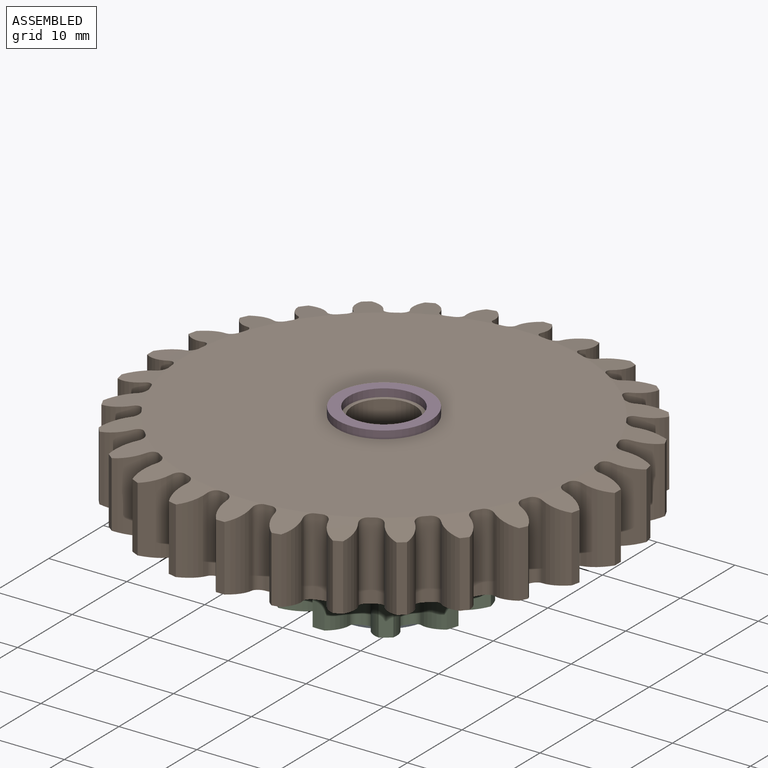
[diagram: assembled view]
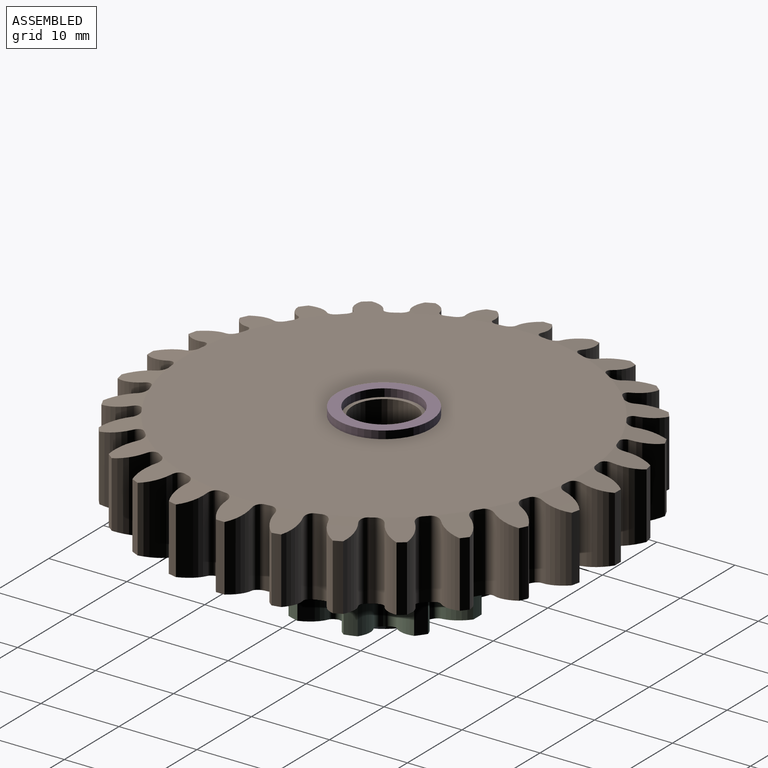
[diagram: assembled view, second angle]
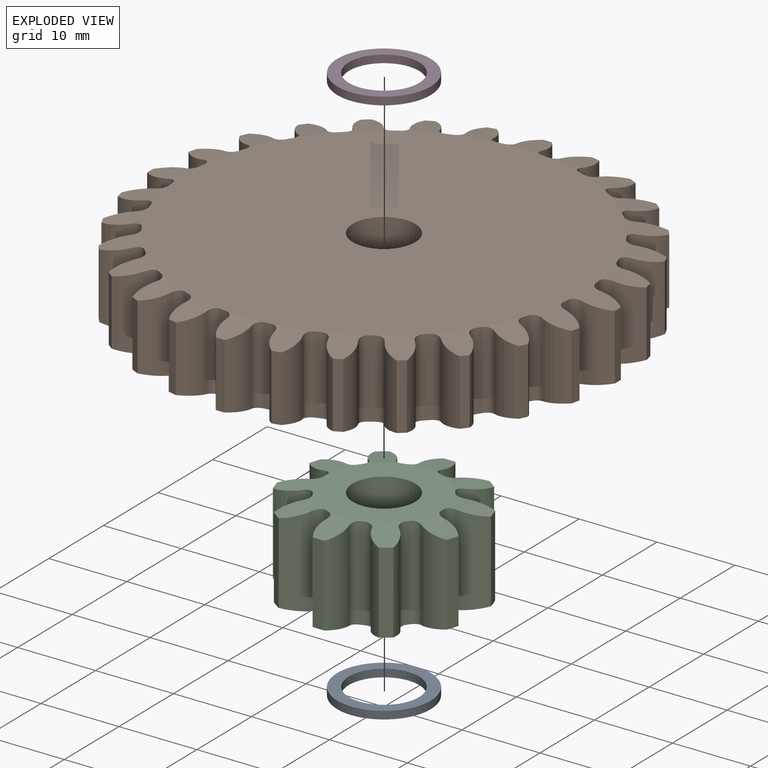
[diagram: exploded view]
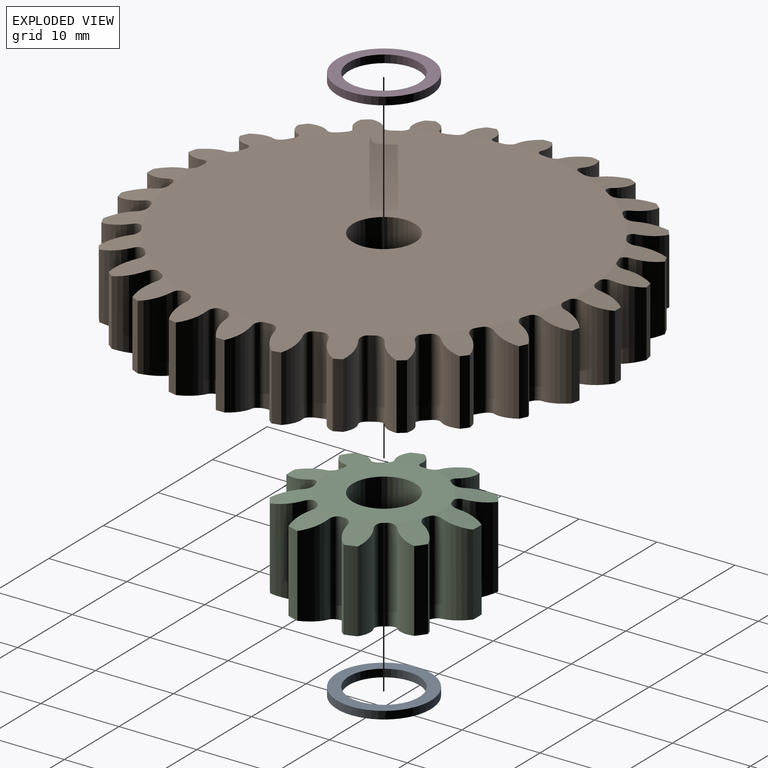
[diagram: exploded view, second angle]
ASSEMBLY  parts=4 mates=3
PART A: 4 faces, bbox 12x1x12 mm
  f0: cylinder r=4.5mm len=9mm, axis (0,1,0), area 28.3mm2, adj f2,f3
  f1: cylinder r=6mm len=12mm, axis (0,1,0), area 37.7mm2, adj f2,f3
  f2: plane 12x12mm, normal (0,-1,0), area 49.5mm2, adj f0,f1
  f3: plane 12x12mm, normal (0,1,0), area 49.5mm2, adj f0,f1
PART B: 227 faces, bbox 60x10x60 mm
  f0: plane 51x51mm, normal (0,-1,0), area 1992.6mm2, adj f2,f3,f4,f5,f6,f7,f8,f9
  f1: plane 51x51mm, normal (0,1,0), area 1992.6mm2, adj f2,f3,f4,f5,f6,f7,f8,f9
  f2: cylinder r=25.5mm len=10mm, axis (0,1,0), area 7.4mm2, adj f0,f1,f33,f169
  f3: cylinder r=25.5mm len=10mm, axis (0,1,0), area 7.4mm2, adj f0,f1,f164,f168
  f4: cylinder r=25.5mm len=10mm, axis (0,1,0), area 7.4mm2, adj f0,f1,f159,f163
  f5: cylinder r=25.5mm len=10mm, axis (0,1,0), area 7.4mm2, adj f0,f1,f154,f158
  f6: cylinder r=25.5mm len=10mm, axis (0,1,0), area 7.4mm2, adj f0,f1,f149,f153
  f7: cylinder r=25.5mm len=10mm, axis (0,1,0), area 7.4mm2, adj f0,f1,f144,f148
  f8: cylinder r=25.5mm len=10mm, axis (0,1,0), area 7.4mm2, adj f0,f1,f139,f143
  f9: cylinder r=25.5mm len=10mm, axis (0,1,0), area 7.4mm2, adj f0,f1,f134,f138
  f10: cylinder r=25.5mm len=10mm, axis (0,1,0), area 7.4mm2, adj f0,f1,f129,f133
  f11: cylinder r=25.5mm len=10mm, axis (0,1,0), area 7.4mm2, adj f0,f1,f124,f128
  f12: cylinder r=25.5mm len=10mm, axis (0,1,0), area 7.4mm2, adj f0,f1,f119,f123
  f13: cylinder r=25.5mm len=10mm, axis (0,1,0), area 7.4mm2, adj f0,f1,f114,f118
  f14: cylinder r=25.5mm len=10mm, axis (0,1,0), area 7.4mm2, adj f0,f1,f109,f113
  f15: cylinder r=25.5mm len=10mm, axis (0,1,0), area 7.4mm2, adj f0,f1,f104,f108
  f16: cylinder r=25.5mm len=10mm, axis (0,1,0), area 7.4mm2, adj f0,f1,f99,f103
  f17: cylinder r=25.5mm len=10mm, axis (0,1,0), area 7.4mm2, adj f0,f1,f94,f98
  f18: cylinder r=25.5mm len=10mm, axis (0,1,0), area 7.4mm2, adj f0,f1,f89,f93
  f19: cylinder r=25.5mm len=10mm, axis (0,1,0), area 7.4mm2, adj f0,f1,f84,f88
  f20: cylinder r=25.5mm len=10mm, axis (0,1,0), area 7.4mm2, adj f0,f1,f79,f83
  f21: cylinder r=25.5mm len=10mm, axis (0,1,0), area 7.4mm2, adj f0,f1,f74,f78
  f22: cylinder r=25.5mm len=10mm, axis (0,1,0), area 7.4mm2, adj f0,f1,f69,f73
  f23: cylinder r=25.5mm len=10mm, axis (0,1,0), area 7.4mm2, adj f0,f1,f64,f68
  f24: cylinder r=25.5mm len=10mm, axis (0,1,0), area 7.4mm2, adj f0,f1,f59,f63
  f25: cylinder r=25.5mm len=10mm, axis (0,1,0), area 7.4mm2, adj f0,f1,f54,f58
  f26: cylinder r=25.5mm len=10mm, axis (0,1,0), area 7.4mm2, adj f0,f1,f49,f53
  f27: cylinder r=25.5mm len=10mm, axis (0,1,0), area 7.4mm2, adj f0,f1,f44,f48
  f28: cylinder r=25.5mm len=10mm, axis (0,1,0), area 7.4mm2, adj f0,f1,f39,f43
  f29: cylinder r=25.5mm len=10mm, axis (0,1,0), area 7.4mm2, adj f0,f1,f34,f38
  f30: cylinder r=4.52mm len=9.63mm, axis (0,1,0), area 33.9mm2, adj f31,f34,f197,f225
  f31: cylinder r=30mm len=8.41mm, axis (0,1,0), area 9.3mm2, adj f30,f32,f197,f225
  f32: cylinder r=4.52mm len=9.63mm, axis (0,1,0), area 33.9mm2, adj f31,f33,f197,f225
  f33: cylinder r=1mm len=10mm, axis (0,1,0), area 15.8mm2, adj f2,f32,f197,f225
  f34: cylinder r=1mm len=10mm, axis (0,1,0), area 15.8mm2, adj f29,f30,f197,f225
  f35: cylinder r=4.52mm len=9.63mm, axis (0,1,0), area 33.9mm2, adj f36,f39,f196,f224
  f36: cylinder r=30mm len=8.41mm, axis (0,1,0), area 9.3mm2, adj f35,f37,f196,f224
  f37: cylinder r=4.52mm len=9.63mm, axis (0,1,0), area 33.9mm2, adj f36,f38,f196,f224
  f38: cylinder r=1mm len=10mm, axis (0,1,0), area 15.8mm2, adj f29,f37,f196,f224
  f39: cylinder r=1mm len=10mm, axis (0,1,0), area 15.8mm2, adj f28,f35,f196,f224
  f40: cylinder r=4.52mm len=9.63mm, axis (0,1,0), area 33.9mm2, adj f41,f44,f195,f223
  f41: cylinder r=30mm len=8.41mm, axis (0,1,0), area 9.3mm2, adj f40,f42,f195,f223
  f42: cylinder r=4.52mm len=9.63mm, axis (0,1,0), area 33.9mm2, adj f41,f43,f195,f223
  f43: cylinder r=1mm len=10mm, axis (0,1,0), area 15.8mm2, adj f28,f42,f195,f223
  f44: cylinder r=1mm len=10mm, axis (0,1,0), area 15.8mm2, adj f27,f40,f195,f223
  f45: cylinder r=4.52mm len=9.63mm, axis (0,1,0), area 33.9mm2, adj f46,f49,f194,f222
  f46: cylinder r=30mm len=8.41mm, axis (0,1,0), area 9.3mm2, adj f45,f47,f194,f222
  f47: cylinder r=4.52mm len=9.63mm, axis (0,1,0), area 33.9mm2, adj f46,f48,f194,f222
  f48: cylinder r=1mm len=10mm, axis (0,1,0), area 15.8mm2, adj f27,f47,f194,f222
  f49: cylinder r=1mm len=10mm, axis (0,1,0), area 15.8mm2, adj f26,f45,f194,f222
  f50: cylinder r=4.52mm len=9.63mm, axis (0,1,0), area 33.9mm2, adj f51,f54,f193,f221
  f51: cylinder r=30mm len=8.41mm, axis (0,1,0), area 9.3mm2, adj f50,f52,f193,f221
  f52: cylinder r=4.52mm len=9.63mm, axis (0,1,0), area 33.9mm2, adj f51,f53,f193,f221
  f53: cylinder r=1mm len=10mm, axis (0,1,0), area 15.8mm2, adj f26,f52,f193,f221
  f54: cylinder r=1mm len=10mm, axis (0,1,0), area 15.8mm2, adj f25,f50,f193,f221
  f55: cylinder r=4.52mm len=9.63mm, axis (0,1,0), area 33.9mm2, adj f56,f59,f192,f220
  f56: cylinder r=30mm len=8.41mm, axis (0,1,0), area 9.3mm2, adj f55,f57,f192,f220
  f57: cylinder r=4.52mm len=9.63mm, axis (0,1,0), area 33.9mm2, adj f56,f58,f192,f220
  f58: cylinder r=1mm len=10mm, axis (0,1,0), area 15.8mm2, adj f25,f57,f192,f220
  f59: cylinder r=1mm len=10mm, axis (0,1,0), area 15.8mm2, adj f24,f55,f192,f220
  f60: cylinder r=4.52mm len=9.63mm, axis (0,1,0), area 33.9mm2, adj f61,f64,f191,f219
  f61: cylinder r=30mm len=8.41mm, axis (0,1,0), area 9.3mm2, adj f60,f62,f191,f219
  f62: cylinder r=4.52mm len=9.63mm, axis (0,1,0), area 33.9mm2, adj f61,f63,f191,f219
  f63: cylinder r=1mm len=10mm, axis (0,1,0), area 15.8mm2, adj f24,f62,f191,f219
  f64: cylinder r=1mm len=10mm, axis (0,1,0), area 15.8mm2, adj f23,f60,f191,f219
  f65: cylinder r=4.52mm len=9.63mm, axis (0,1,0), area 33.9mm2, adj f66,f69,f190,f218
  f66: cylinder r=30mm len=8.41mm, axis (0,1,0), area 9.3mm2, adj f65,f67,f190,f218
  f67: cylinder r=4.52mm len=9.63mm, axis (0,1,0), area 33.9mm2, adj f66,f68,f190,f218
  f68: cylinder r=1mm len=10mm, axis (0,1,0), area 15.8mm2, adj f23,f67,f190,f218
  f69: cylinder r=1mm len=10mm, axis (0,1,0), area 15.8mm2, adj f22,f65,f190,f218
  f70: cylinder r=4.52mm len=9.63mm, axis (0,1,0), area 33.9mm2, adj f71,f74,f189,f217
  f71: cylinder r=30mm len=8.41mm, axis (0,1,0), area 9.3mm2, adj f70,f72,f189,f217
  f72: cylinder r=4.52mm len=9.63mm, axis (0,1,0), area 33.9mm2, adj f71,f73,f189,f217
  f73: cylinder r=1mm len=10mm, axis (0,1,0), area 15.8mm2, adj f22,f72,f189,f217
  f74: cylinder r=1mm len=10mm, axis (0,1,0), area 15.8mm2, adj f21,f70,f189,f217
  f75: cylinder r=4.52mm len=9.63mm, axis (0,1,0), area 33.9mm2, adj f76,f79,f188,f216
  f76: cylinder r=30mm len=8.41mm, axis (0,1,0), area 9.3mm2, adj f75,f77,f188,f216
  f77: cylinder r=4.52mm len=9.63mm, axis (0,1,0), area 33.9mm2, adj f76,f78,f188,f216
  f78: cylinder r=1mm len=10mm, axis (0,1,0), area 15.8mm2, adj f21,f77,f188,f216
  f79: cylinder r=1mm len=10mm, axis (0,1,0), area 15.8mm2, adj f20,f75,f188,f216
  f80: cylinder r=4.52mm len=9.63mm, axis (0,1,0), area 33.9mm2, adj f81,f84,f187,f215
  f81: cylinder r=30mm len=8.41mm, axis (0,1,0), area 9.3mm2, adj f80,f82,f187,f215
  f82: cylinder r=4.52mm len=9.63mm, axis (0,1,0), area 33.9mm2, adj f81,f83,f187,f215
  f83: cylinder r=1mm len=10mm, axis (0,1,0), area 15.8mm2, adj f20,f82,f187,f215
  f84: cylinder r=1mm len=10mm, axis (0,1,0), area 15.8mm2, adj f19,f80,f187,f215
  f85: cylinder r=4.52mm len=9.63mm, axis (0,1,0), area 33.9mm2, adj f86,f89,f186,f214
  f86: cylinder r=30mm len=8.41mm, axis (0,1,0), area 9.3mm2, adj f85,f87,f186,f214
  f87: cylinder r=4.52mm len=9.63mm, axis (0,1,0), area 33.9mm2, adj f86,f88,f186,f214
  f88: cylinder r=1mm len=10mm, axis (0,1,0), area 15.8mm2, adj f19,f87,f186,f214
  f89: cylinder r=1mm len=10mm, axis (0,1,0), area 15.8mm2, adj f18,f85,f186,f214
  f90: cylinder r=4.52mm len=9.63mm, axis (0,1,0), area 33.9mm2, adj f91,f94,f185,f213
  f91: cylinder r=30mm len=8.41mm, axis (0,1,0), area 9.3mm2, adj f90,f92,f185,f213
  f92: cylinder r=4.52mm len=9.63mm, axis (0,1,0), area 33.9mm2, adj f91,f93,f185,f213
  f93: cylinder r=1mm len=10mm, axis (0,1,0), area 15.8mm2, adj f18,f92,f185,f213
  f94: cylinder r=1mm len=10mm, axis (0,1,0), area 15.8mm2, adj f17,f90,f185,f213
  f95: cylinder r=4.52mm len=9.63mm, axis (0,1,0), area 33.9mm2, adj f96,f99,f184,f212
  f96: cylinder r=30mm len=8.41mm, axis (0,1,0), area 9.3mm2, adj f95,f97,f184,f212
  f97: cylinder r=4.52mm len=9.63mm, axis (0,1,0), area 33.9mm2, adj f96,f98,f184,f212
  f98: cylinder r=1mm len=10mm, axis (0,1,0), area 15.8mm2, adj f17,f97,f184,f212
  f99: cylinder r=1mm len=10mm, axis (0,1,0), area 15.8mm2, adj f16,f95,f184,f212
  f100: cylinder r=4.52mm len=9.63mm, axis (0,1,0), area 33.9mm2, adj f101,f104,f183,f211
  f101: cylinder r=30mm len=8.41mm, axis (0,1,0), area 9.3mm2, adj f100,f102,f183,f211
  f102: cylinder r=4.52mm len=9.63mm, axis (0,1,0), area 33.9mm2, adj f101,f103,f183,f211
  f103: cylinder r=1mm len=10mm, axis (0,1,0), area 15.8mm2, adj f16,f102,f183,f211
  f104: cylinder r=1mm len=10mm, axis (0,1,0), area 15.8mm2, adj f15,f100,f183,f211
  f105: cylinder r=4.52mm len=9.63mm, axis (0,1,0), area 33.9mm2, adj f106,f109,f182,f210
  f106: cylinder r=30mm len=8.41mm, axis (0,1,0), area 9.3mm2, adj f105,f107,f182,f210
  f107: cylinder r=4.52mm len=9.63mm, axis (0,1,0), area 33.9mm2, adj f106,f108,f182,f210
  f108: cylinder r=1mm len=10mm, axis (0,1,0), area 15.8mm2, adj f15,f107,f182,f210
  f109: cylinder r=1mm len=10mm, axis (0,1,0), area 15.8mm2, adj f14,f105,f182,f210
  f110: cylinder r=4.52mm len=9.63mm, axis (0,1,0), area 33.9mm2, adj f111,f114,f181,f209
  f111: cylinder r=30mm len=8.41mm, axis (0,1,0), area 9.3mm2, adj f110,f112,f181,f209
  f112: cylinder r=4.52mm len=9.63mm, axis (0,1,0), area 33.9mm2, adj f111,f113,f181,f209
  f113: cylinder r=1mm len=10mm, axis (0,1,0), area 15.8mm2, adj f14,f112,f181,f209
  f114: cylinder r=1mm len=10mm, axis (0,1,0), area 15.8mm2, adj f13,f110,f181,f209
  f115: cylinder r=4.52mm len=9.63mm, axis (0,1,0), area 33.9mm2, adj f116,f119,f180,f208
  f116: cylinder r=30mm len=8.41mm, axis (0,1,0), area 9.3mm2, adj f115,f117,f180,f208
  f117: cylinder r=4.52mm len=9.63mm, axis (0,1,0), area 33.9mm2, adj f116,f118,f180,f208
  f118: cylinder r=1mm len=10mm, axis (0,1,0), area 15.8mm2, adj f13,f117,f180,f208
  f119: cylinder r=1mm len=10mm, axis (0,1,0), area 15.8mm2, adj f12,f115,f180,f208
  f120: cylinder r=4.52mm len=9.63mm, axis (0,1,0), area 33.9mm2, adj f121,f124,f179,f207
  f121: cylinder r=30mm len=8.41mm, axis (0,1,0), area 9.3mm2, adj f120,f122,f179,f207
  f122: cylinder r=4.52mm len=9.63mm, axis (0,1,0), area 33.9mm2, adj f121,f123,f179,f207
  f123: cylinder r=1mm len=10mm, axis (0,1,0), area 15.8mm2, adj f12,f122,f179,f207
  f124: cylinder r=1mm len=10mm, axis (0,1,0), area 15.8mm2, adj f11,f120,f179,f207
  f125: cylinder r=4.52mm len=9.63mm, axis (0,1,0), area 33.9mm2, adj f126,f129,f178,f206
  f126: cylinder r=30mm len=8.41mm, axis (0,1,0), area 9.3mm2, adj f125,f127,f178,f206
  f127: cylinder r=4.52mm len=9.63mm, axis (0,1,0), area 33.9mm2, adj f126,f128,f178,f206
  f128: cylinder r=1mm len=10mm, axis (0,1,0), area 15.8mm2, adj f11,f127,f178,f206
  f129: cylinder r=1mm len=10mm, axis (0,1,0), area 15.8mm2, adj f10,f125,f178,f206
  f130: cylinder r=4.52mm len=9.63mm, axis (0,1,0), area 33.9mm2, adj f131,f134,f177,f205
  f131: cylinder r=30mm len=8.41mm, axis (0,1,0), area 9.3mm2, adj f130,f132,f177,f205
  f132: cylinder r=4.52mm len=9.63mm, axis (0,1,0), area 33.9mm2, adj f131,f133,f177,f205
  f133: cylinder r=1mm len=10mm, axis (0,1,0), area 15.8mm2, adj f10,f132,f177,f205
  f134: cylinder r=1mm len=10mm, axis (0,1,0), area 15.8mm2, adj f9,f130,f177,f205
  f135: cylinder r=4.52mm len=9.63mm, axis (0,1,0), area 33.9mm2, adj f136,f139,f176,f204
  f136: cylinder r=30mm len=8.41mm, axis (0,1,0), area 9.3mm2, adj f135,f137,f176,f204
  f137: cylinder r=4.52mm len=9.63mm, axis (0,1,0), area 33.9mm2, adj f136,f138,f176,f204
  f138: cylinder r=1mm len=10mm, axis (0,1,0), area 15.8mm2, adj f9,f137,f176,f204
  f139: cylinder r=1mm len=10mm, axis (0,1,0), area 15.8mm2, adj f8,f135,f176,f204
  f140: cylinder r=4.52mm len=9.63mm, axis (0,1,0), area 33.9mm2, adj f141,f144,f175,f203
  f141: cylinder r=30mm len=8.41mm, axis (0,1,0), area 9.3mm2, adj f140,f142,f175,f203
  f142: cylinder r=4.52mm len=9.63mm, axis (0,1,0), area 33.9mm2, adj f141,f143,f175,f203
  f143: cylinder r=1mm len=10mm, axis (0,1,0), area 15.8mm2, adj f8,f142,f175,f203
  f144: cylinder r=1mm len=10mm, axis (0,1,0), area 15.8mm2, adj f7,f140,f175,f203
  f145: cylinder r=4.52mm len=9.63mm, axis (0,1,0), area 33.9mm2, adj f146,f149,f174,f202
  f146: cylinder r=30mm len=8.41mm, axis (0,1,0), area 9.3mm2, adj f145,f147,f174,f202
  f147: cylinder r=4.52mm len=9.63mm, axis (0,1,0), area 33.9mm2, adj f146,f148,f174,f202
  f148: cylinder r=1mm len=10mm, axis (0,1,0), area 15.8mm2, adj f7,f147,f174,f202
  f149: cylinder r=1mm len=10mm, axis (0,1,0), area 15.8mm2, adj f6,f145,f174,f202
  f150: cylinder r=4.52mm len=9.63mm, axis (0,1,0), area 33.9mm2, adj f151,f154,f173,f201
  f151: cylinder r=30mm len=8.41mm, axis (0,1,0), area 9.3mm2, adj f150,f152,f173,f201
  f152: cylinder r=4.52mm len=9.63mm, axis (0,1,0), area 33.9mm2, adj f151,f153,f173,f201
  f153: cylinder r=1mm len=10mm, axis (0,1,0), area 15.8mm2, adj f6,f152,f173,f201
  f154: cylinder r=1mm len=10mm, axis (0,1,0), area 15.8mm2, adj f5,f150,f173,f201
  f155: cylinder r=4.52mm len=9.63mm, axis (0,1,0), area 33.9mm2, adj f156,f159,f172,f200
  f156: cylinder r=30mm len=8.41mm, axis (0,1,0), area 9.3mm2, adj f155,f157,f172,f200
  f157: cylinder r=4.52mm len=9.63mm, axis (0,1,0), area 33.9mm2, adj f156,f158,f172,f200
  f158: cylinder r=1mm len=10mm, axis (0,1,0), area 15.8mm2, adj f5,f157,f172,f200
  f159: cylinder r=1mm len=10mm, axis (0,1,0), area 15.8mm2, adj f4,f155,f172,f200
  f160: cylinder r=4.52mm len=9.63mm, axis (0,1,0), area 33.9mm2, adj f161,f164,f171,f199
  f161: cylinder r=30mm len=8.41mm, axis (0,1,0), area 9.3mm2, adj f160,f162,f171,f199
  f162: cylinder r=4.52mm len=9.63mm, axis (0,1,0), area 33.9mm2, adj f161,f163,f171,f199
  f163: cylinder r=1mm len=10mm, axis (0,1,0), area 15.8mm2, adj f4,f162,f171,f199
  f164: cylinder r=1mm len=10mm, axis (0,1,0), area 15.8mm2, adj f3,f160,f171,f199
  f165: cylinder r=4.52mm len=9.63mm, axis (0,1,0), area 33.9mm2, adj f166,f169,f170,f198
  f166: cylinder r=30mm len=8.41mm, axis (0,1,0), area 9.3mm2, adj f165,f167,f170,f198
  f167: cylinder r=4.52mm len=9.63mm, axis (0,1,0), area 33.9mm2, adj f166,f168,f170,f198
  f168: cylinder r=1mm len=10mm, axis (0,1,0), area 15.8mm2, adj f3,f167,f170,f198
  f169: cylinder r=1mm len=10mm, axis (0,1,0), area 15.8mm2, adj f2,f165,f170,f198
  f170: cone r=30.12mm half-angle=80deg, axis (0,-1,0), area 13.2mm2, adj f1,f165,f166,f167,f168,f169
  f171: cone r=30.12mm half-angle=80deg, axis (0,-1,0), area 13.2mm2, adj f1,f160,f161,f162,f163,f164
  f172: cone r=30.12mm half-angle=80deg, axis (0,-1,0), area 13.2mm2, adj f1,f155,f156,f157,f158,f159
  f173: cone r=30.12mm half-angle=80deg, axis (0,-1,0), area 13.2mm2, adj f1,f150,f151,f152,f153,f154
  f174: cone r=30.12mm half-angle=80deg, axis (0,-1,0), area 13.2mm2, adj f1,f145,f146,f147,f148,f149
  f175: cone r=30.12mm half-angle=80deg, axis (0,-1,0), area 13.2mm2, adj f1,f140,f141,f142,f143,f144
  f176: cone r=30.12mm half-angle=80deg, axis (0,-1,0), area 13.2mm2, adj f1,f135,f136,f137,f138,f139
  f177: cone r=30.12mm half-angle=80deg, axis (0,-1,0), area 13.2mm2, adj f1,f130,f131,f132,f133,f134
  f178: cone r=30.12mm half-angle=80deg, axis (0,-1,0), area 13.2mm2, adj f1,f125,f126,f127,f128,f129
  f179: cone r=30.12mm half-angle=80deg, axis (0,-1,0), area 13.2mm2, adj f1,f120,f121,f122,f123,f124
  f180: cone r=30.12mm half-angle=80deg, axis (0,-1,0), area 13.2mm2, adj f1,f115,f116,f117,f118,f119
  f181: cone r=30.12mm half-angle=80deg, axis (0,-1,0), area 13.2mm2, adj f1,f110,f111,f112,f113,f114
  f182: cone r=30.12mm half-angle=80deg, axis (0,-1,0), area 13.2mm2, adj f1,f105,f106,f107,f108,f109
  f183: cone r=30.12mm half-angle=80deg, axis (0,-1,0), area 13.2mm2, adj f1,f100,f101,f102,f103,f104
  f184: cone r=30.12mm half-angle=80deg, axis (0,-1,0), area 13.2mm2, adj f1,f95,f96,f97,f98,f99
  f185: cone r=30.12mm half-angle=80deg, axis (0,-1,0), area 13.2mm2, adj f1,f90,f91,f92,f93,f94
  f186: cone r=30.12mm half-angle=80deg, axis (0,-1,0), area 13.2mm2, adj f1,f85,f86,f87,f88,f89
  f187: cone r=30.12mm half-angle=80deg, axis (0,-1,0), area 13.2mm2, adj f1,f80,f81,f82,f83,f84
  f188: cone r=30.12mm half-angle=80deg, axis (0,-1,0), area 13.2mm2, adj f1,f75,f76,f77,f78,f79
  f189: cone r=30.12mm half-angle=80deg, axis (0,-1,0), area 13.2mm2, adj f1,f70,f71,f72,f73,f74
  f190: cone r=30.12mm half-angle=80deg, axis (0,-1,0), area 13.2mm2, adj f1,f65,f66,f67,f68,f69
  f191: cone r=30.12mm half-angle=80deg, axis (0,-1,0), area 13.2mm2, adj f1,f60,f61,f62,f63,f64
  f192: cone r=30.12mm half-angle=80deg, axis (0,-1,0), area 13.2mm2, adj f1,f55,f56,f57,f58,f59
  f193: cone r=30.12mm half-angle=80deg, axis (0,-1,0), area 13.2mm2, adj f1,f50,f51,f52,f53,f54
  f194: cone r=30.12mm half-angle=80deg, axis (0,-1,0), area 13.2mm2, adj f1,f45,f46,f47,f48,f49
  f195: cone r=30.12mm half-angle=80deg, axis (0,-1,0), area 13.2mm2, adj f1,f40,f41,f42,f43,f44
  f196: cone r=30.12mm half-angle=80deg, axis (0,-1,0), area 13.2mm2, adj f1,f35,f36,f37,f38,f39
  f197: cone r=30.12mm half-angle=80deg, axis (0,-1,0), area 13.2mm2, adj f1,f30,f31,f32,f33,f34
  f198: cone r=30.12mm half-angle=80deg, axis (0,1,0), area 13.2mm2, adj f0,f165,f166,f167,f168,f169
  f199: cone r=30.12mm half-angle=80deg, axis (0,1,0), area 13.2mm2, adj f0,f160,f161,f162,f163,f164
  f200: cone r=30.12mm half-angle=80deg, axis (0,1,0), area 13.2mm2, adj f0,f155,f156,f157,f158,f159
  f201: cone r=30.12mm half-angle=80deg, axis (0,1,0), area 13.2mm2, adj f0,f150,f151,f152,f153,f154
  f202: cone r=30.12mm half-angle=80deg, axis (0,1,0), area 13.2mm2, adj f0,f145,f146,f147,f148,f149
  f203: cone r=30.12mm half-angle=80deg, axis (0,1,0), area 13.2mm2, adj f0,f140,f141,f142,f143,f144
  f204: cone r=30.12mm half-angle=80deg, axis (0,1,0), area 13.2mm2, adj f0,f135,f136,f137,f138,f139
  f205: cone r=30.12mm half-angle=80deg, axis (0,1,0), area 13.2mm2, adj f0,f130,f131,f132,f133,f134
  f206: cone r=30.12mm half-angle=80deg, axis (0,1,0), area 13.2mm2, adj f0,f125,f126,f127,f128,f129
  f207: cone r=30.12mm half-angle=80deg, axis (0,1,0), area 13.2mm2, adj f0,f120,f121,f122,f123,f124
  f208: cone r=30.12mm half-angle=80deg, axis (0,1,0), area 13.2mm2, adj f0,f115,f116,f117,f118,f119
  f209: cone r=30.12mm half-angle=80deg, axis (0,1,0), area 13.2mm2, adj f0,f110,f111,f112,f113,f114
  f210: cone r=30.12mm half-angle=80deg, axis (0,1,0), area 13.2mm2, adj f0,f105,f106,f107,f108,f109
  f211: cone r=30.12mm half-angle=80deg, axis (0,1,0), area 13.2mm2, adj f0,f100,f101,f102,f103,f104
  f212: cone r=30.12mm half-angle=80deg, axis (0,1,0), area 13.2mm2, adj f0,f95,f96,f97,f98,f99
  f213: cone r=30.12mm half-angle=80deg, axis (0,1,0), area 13.2mm2, adj f0,f90,f91,f92,f93,f94
  f214: cone r=30.12mm half-angle=80deg, axis (0,1,0), area 13.2mm2, adj f0,f85,f86,f87,f88,f89
  f215: cone r=30.12mm half-angle=80deg, axis (0,1,0), area 13.2mm2, adj f0,f80,f81,f82,f83,f84
  f216: cone r=30.12mm half-angle=80deg, axis (0,1,0), area 13.2mm2, adj f0,f75,f76,f77,f78,f79
  f217: cone r=30.12mm half-angle=80deg, axis (0,1,0), area 13.2mm2, adj f0,f70,f71,f72,f73,f74
  f218: cone r=30.12mm half-angle=80deg, axis (0,1,0), area 13.2mm2, adj f0,f65,f66,f67,f68,f69
  f219: cone r=30.12mm half-angle=80deg, axis (0,1,0), area 13.2mm2, adj f0,f60,f61,f62,f63,f64
  f220: cone r=30.12mm half-angle=80deg, axis (0,1,0), area 13.2mm2, adj f0,f55,f56,f57,f58,f59
  f221: cone r=30.12mm half-angle=80deg, axis (0,1,0), area 13.2mm2, adj f0,f50,f51,f52,f53,f54
  f222: cone r=30.12mm half-angle=80deg, axis (0,1,0), area 13.2mm2, adj f0,f45,f46,f47,f48,f49
  f223: cone r=30.12mm half-angle=80deg, axis (0,1,0), area 13.2mm2, adj f0,f40,f41,f42,f43,f44
  f224: cone r=30.12mm half-angle=80deg, axis (0,1,0), area 13.2mm2, adj f0,f35,f36,f37,f38,f39
  f225: cone r=30.12mm half-angle=80deg, axis (0,1,0), area 13.2mm2, adj f0,f30,f31,f32,f33,f34
  f226: cylinder r=4mm len=10mm, axis (0,1,0), area 251.3mm2, adj f0,f1
PART C: 83 faces, bbox 24x12x24 mm
  f0: plane 15x15mm, normal (0,-1,0), area 126.4mm2, adj f2,f3,f4,f5,f6,f7,f8,f9
  f1: plane 15x15mm, normal (0,1,0), area 126.4mm2, adj f2,f3,f4,f5,f6,f7,f8,f9
  f2: cylinder r=7.5mm len=12mm, axis (0,1,0), area 4.9mm2, adj f0,f1,f15,f61
  f3: cylinder r=7.5mm len=12mm, axis (0,1,0), area 4.9mm2, adj f0,f1,f56,f60
  f4: cylinder r=7.5mm len=12mm, axis (0,1,0), area 4.9mm2, adj f0,f1,f51,f55
  f5: cylinder r=7.5mm len=12mm, axis (0,1,0), area 4.9mm2, adj f0,f1,f46,f50
  f6: cylinder r=7.5mm len=12mm, axis (0,1,0), area 4.9mm2, adj f0,f1,f41,f45
  f7: cylinder r=7.5mm len=12mm, axis (0,1,0), area 4.9mm2, adj f0,f1,f36,f40
  f8: cylinder r=7.5mm len=12mm, axis (0,1,0), area 4.9mm2, adj f0,f1,f31,f35
  f9: cylinder r=7.5mm len=12mm, axis (0,1,0), area 4.9mm2, adj f0,f1,f26,f30
  f10: cylinder r=7.5mm len=12mm, axis (0,1,0), area 4.9mm2, adj f0,f1,f21,f25
  f11: cylinder r=7.5mm len=12mm, axis (0,1,0), area 4.9mm2, adj f0,f1,f16,f20
  f12: cylinder r=4.45mm len=11.64mm, axis (0,1,0), area 41.4mm2, adj f13,f16,f71,f81
  f13: cylinder r=12mm len=10.41mm, axis (0,1,0), area 16.1mm2, adj f12,f14,f71,f81
  f14: cylinder r=4.45mm len=11.64mm, axis (0,1,0), area 41.4mm2, adj f13,f15,f71,f81
  f15: cylinder r=1mm len=12mm, axis (0,1,0), area 18mm2, adj f2,f14,f71,f81
  f16: cylinder r=1mm len=12mm, axis (0,1,0), area 18mm2, adj f11,f12,f71,f81
  f17: cylinder r=4.45mm len=11.64mm, axis (0,1,0), area 41.4mm2, adj f18,f21,f70,f80
  f18: cylinder r=12mm len=10.41mm, axis (0,1,0), area 16.1mm2, adj f17,f19,f70,f80
  f19: cylinder r=4.45mm len=11.64mm, axis (0,1,0), area 41.4mm2, adj f18,f20,f70,f80
  f20: cylinder r=1mm len=12mm, axis (0,1,0), area 18mm2, adj f11,f19,f70,f80
  f21: cylinder r=1mm len=12mm, axis (0,1,0), area 18mm2, adj f10,f17,f70,f80
  f22: cylinder r=4.45mm len=11.64mm, axis (0,1,0), area 41.4mm2, adj f23,f26,f69,f79
  f23: cylinder r=12mm len=10.41mm, axis (0,1,0), area 16.1mm2, adj f22,f24,f69,f79
  f24: cylinder r=4.45mm len=11.64mm, axis (0,1,0), area 41.4mm2, adj f23,f25,f69,f79
  f25: cylinder r=1mm len=12mm, axis (0,1,0), area 18mm2, adj f10,f24,f69,f79
  f26: cylinder r=1mm len=12mm, axis (0,1,0), area 18mm2, adj f9,f22,f69,f79
  f27: cylinder r=4.45mm len=11.64mm, axis (0,1,0), area 41.4mm2, adj f28,f31,f68,f78
  f28: cylinder r=12mm len=10.41mm, axis (0,1,0), area 16.1mm2, adj f27,f29,f68,f78
  f29: cylinder r=4.45mm len=11.64mm, axis (0,1,0), area 41.4mm2, adj f28,f30,f68,f78
  f30: cylinder r=1mm len=12mm, axis (0,1,0), area 18mm2, adj f9,f29,f68,f78
  f31: cylinder r=1mm len=12mm, axis (0,1,0), area 18mm2, adj f8,f27,f68,f78
  f32: cylinder r=4.45mm len=11.64mm, axis (0,1,0), area 41.4mm2, adj f33,f36,f67,f77
  f33: cylinder r=12mm len=10.41mm, axis (0,1,0), area 16.1mm2, adj f32,f34,f67,f77
  f34: cylinder r=4.45mm len=11.64mm, axis (0,1,0), area 41.4mm2, adj f33,f35,f67,f77
  f35: cylinder r=1mm len=12mm, axis (0,1,0), area 18mm2, adj f8,f34,f67,f77
  f36: cylinder r=1mm len=12mm, axis (0,1,0), area 18mm2, adj f7,f32,f67,f77
  f37: cylinder r=4.45mm len=11.64mm, axis (0,1,0), area 41.4mm2, adj f38,f41,f66,f76
  f38: cylinder r=12mm len=10.41mm, axis (0,1,0), area 16.1mm2, adj f37,f39,f66,f76
  f39: cylinder r=4.45mm len=11.64mm, axis (0,1,0), area 41.4mm2, adj f38,f40,f66,f76
  f40: cylinder r=1mm len=12mm, axis (0,1,0), area 18mm2, adj f7,f39,f66,f76
  f41: cylinder r=1mm len=12mm, axis (0,1,0), area 18mm2, adj f6,f37,f66,f76
  f42: cylinder r=4.45mm len=11.64mm, axis (0,1,0), area 41.4mm2, adj f43,f46,f65,f75
  f43: cylinder r=12mm len=10.41mm, axis (0,1,0), area 16.1mm2, adj f42,f44,f65,f75
  f44: cylinder r=4.45mm len=11.64mm, axis (0,1,0), area 41.4mm2, adj f43,f45,f65,f75
  f45: cylinder r=1mm len=12mm, axis (0,1,0), area 18mm2, adj f6,f44,f65,f75
  f46: cylinder r=1mm len=12mm, axis (0,1,0), area 18mm2, adj f5,f42,f65,f75
  f47: cylinder r=4.45mm len=11.64mm, axis (0,1,0), area 41.4mm2, adj f48,f51,f64,f74
  f48: cylinder r=12mm len=10.41mm, axis (0,1,0), area 16.1mm2, adj f47,f49,f64,f74
  f49: cylinder r=4.45mm len=11.64mm, axis (0,1,0), area 41.4mm2, adj f48,f50,f64,f74
  f50: cylinder r=1mm len=12mm, axis (0,1,0), area 18mm2, adj f5,f49,f64,f74
  f51: cylinder r=1mm len=12mm, axis (0,1,0), area 18mm2, adj f4,f47,f64,f74
  f52: cylinder r=4.45mm len=11.64mm, axis (0,1,0), area 41.4mm2, adj f53,f56,f63,f73
  f53: cylinder r=12mm len=10.41mm, axis (0,1,0), area 16.1mm2, adj f52,f54,f63,f73
  f54: cylinder r=4.45mm len=11.64mm, axis (0,1,0), area 41.4mm2, adj f53,f55,f63,f73
  f55: cylinder r=1mm len=12mm, axis (0,1,0), area 18mm2, adj f4,f54,f63,f73
  f56: cylinder r=1mm len=12mm, axis (0,1,0), area 18mm2, adj f3,f52,f63,f73
  f57: cylinder r=4.45mm len=11.64mm, axis (0,1,0), area 41.4mm2, adj f58,f61,f62,f72
  f58: cylinder r=12mm len=10.41mm, axis (0,1,0), area 16.1mm2, adj f57,f59,f62,f72
  f59: cylinder r=4.45mm len=11.64mm, axis (0,1,0), area 41.4mm2, adj f58,f60,f62,f72
  f60: cylinder r=1mm len=12mm, axis (0,1,0), area 18mm2, adj f3,f59,f62,f72
  f61: cylinder r=1mm len=12mm, axis (0,1,0), area 18mm2, adj f2,f57,f62,f72
  f62: cone r=12.12mm half-angle=80deg, axis (0,-1,0), area 12.9mm2, adj f1,f57,f58,f59,f60,f61
  f63: cone r=12.12mm half-angle=80deg, axis (0,-1,0), area 12.9mm2, adj f1,f52,f53,f54,f55,f56
  f64: cone r=12.12mm half-angle=80deg, axis (0,-1,0), area 12.9mm2, adj f1,f47,f48,f49,f50,f51
  f65: cone r=12.12mm half-angle=80deg, axis (0,-1,0), area 12.9mm2, adj f1,f42,f43,f44,f45,f46
  f66: cone r=12.12mm half-angle=80deg, axis (0,-1,0), area 12.9mm2, adj f1,f37,f38,f39,f40,f41
  f67: cone r=12.12mm half-angle=80deg, axis (0,-1,0), area 12.9mm2, adj f1,f32,f33,f34,f35,f36
  f68: cone r=12.12mm half-angle=80deg, axis (0,-1,0), area 12.9mm2, adj f1,f27,f28,f29,f30,f31
  f69: cone r=12.12mm half-angle=80deg, axis (0,-1,0), area 12.9mm2, adj f1,f22,f23,f24,f25,f26
  f70: cone r=12.12mm half-angle=80deg, axis (0,-1,0), area 12.9mm2, adj f1,f17,f18,f19,f20,f21
  f71: cone r=12.12mm half-angle=80deg, axis (0,-1,0), area 12.9mm2, adj f1,f12,f13,f14,f15,f16
  f72: cone r=12.12mm half-angle=80deg, axis (0,1,0), area 12.9mm2, adj f0,f57,f58,f59,f60,f61
  f73: cone r=12.12mm half-angle=80deg, axis (0,1,0), area 12.9mm2, adj f0,f52,f53,f54,f55,f56
  f74: cone r=12.12mm half-angle=80deg, axis (0,1,0), area 12.9mm2, adj f0,f47,f48,f49,f50,f51
  f75: cone r=12.12mm half-angle=80deg, axis (0,1,0), area 12.9mm2, adj f0,f42,f43,f44,f45,f46
  f76: cone r=12.12mm half-angle=80deg, axis (0,1,0), area 12.9mm2, adj f0,f37,f38,f39,f40,f41
  f77: cone r=12.12mm half-angle=80deg, axis (0,1,0), area 12.9mm2, adj f0,f32,f33,f34,f35,f36
  f78: cone r=12.12mm half-angle=80deg, axis (0,1,0), area 12.9mm2, adj f0,f27,f28,f29,f30,f31
  f79: cone r=12.12mm half-angle=80deg, axis (0,1,0), area 12.9mm2, adj f0,f22,f23,f24,f25,f26
  f80: cone r=12.12mm half-angle=80deg, axis (0,1,0), area 12.9mm2, adj f0,f17,f18,f19,f20,f21
  f81: cone r=12.12mm half-angle=80deg, axis (0,1,0), area 12.9mm2, adj f0,f12,f13,f14,f15,f16
  f82: cylinder r=4mm len=12mm, axis (0,-1,0), area 301.6mm2, adj f0,f1
PART D: same geometry as A
PLACE A rot(axis=(1,0,0),90deg) t=(0,0,-27)mm
PLACE B rot(axis=(1,0,0),90deg) t=(0,0,-11)mm
PLACE C rot(axis=(1,0,0),90deg) t=(0,0,-21)mm
PLACE D rot(axis=(-1,0,0),90deg) t=(0,0,-6)mm
MATE fastened D.f0 <-> B.f2  axis (0,0,-1) through (0,0,-6)mm
MATE fastened C.f2 <-> B.f2  axis (0,0,1) through (0,0,-15)mm
MATE fastened A.f0 <-> C.f2  axis (0,0,1) through (0,0,-27)mm
